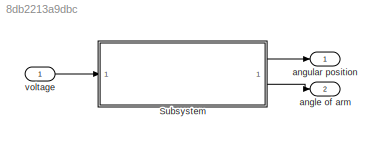
MODEL slx_8db2213a9dbc
KIND model
CONFIG AbsTol = auto
CONFIG EnableMultiTasking = off
CONFIG FixedStep = auto
CONFIG InitFcn = J_eq = 1.843e-6;\nm = 0.0270;\nr = 0.0826;\nK_g = 1;\nJ_m = 1.80e-4;\nn_g = 1;\nn_m = 0.69;\nL = 0.0955;\ng = 9.9;\nK_t = 0.0334;\nR = 8.7;\n\na = J_eq + m * r ^ 2 + n_g * K_g ^ 2 * J_m;\nb = m * L * r;\nc = (4/3) * m * L ^ 2;\nd = m * g * L;\ne = 2.718;\nf = (n_m * n_g * K_t * K_g) / R;
CONFIG MaxStep = auto
CONFIG MinStep = auto
CONFIG RelTol = 1e-3
CONFIG SampleTimeConstraint = Unconstrained
CONFIG SolverName = VariableStepAuto
CONFIG StartTime = 0.0
CONFIG StopTime = 10.0
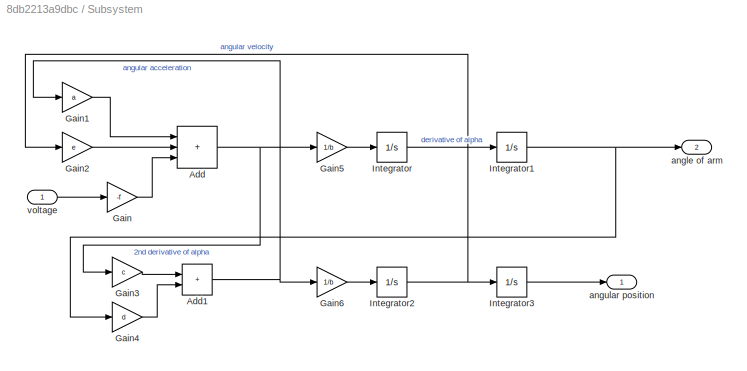
BLOCK [SubSystem] Subsystem
BLOCK [Sum] Subsystem/Add
  IconShape = rectangular
  Inputs = +++
BLOCK [Sum] Subsystem/Add1
  IconShape = rectangular
BLOCK [Gain] Subsystem/Gain
  Gain = -f
BLOCK [Gain] Subsystem/Gain1
  Gain = a
BLOCK [Gain] Subsystem/Gain2
  Gain = e
BLOCK [Gain] Subsystem/Gain3
  Gain = c
BLOCK [Gain] Subsystem/Gain4
  Gain = d
BLOCK [Gain] Subsystem/Gain5
  Gain = 1/b
BLOCK [Gain] Subsystem/Gain6
  Gain = 1/b
BLOCK [Integrator] Subsystem/Integrator
BLOCK [Integrator] Subsystem/Integrator1
BLOCK [Integrator] Subsystem/Integrator2
BLOCK [Integrator] Subsystem/Integrator3
BLOCK [Outport] Subsystem/angle of arm
  Port = 2
BLOCK [Outport] Subsystem/angular position
BLOCK [Inport] Subsystem/voltage
BLOCK [Outport] angle of arm
  Port = 2
BLOCK [Outport] angular position
  NameLocation = top
BLOCK [Inport] voltage
NET Subsystem/Add1:1 -> Subsystem/Gain1:1, Subsystem/Gain6:1
NET Subsystem/Add:1 -> Subsystem/Gain3:1, Subsystem/Gain5:1
LINE Subsystem/Gain1:1 -> Subsystem/Add:1
LINE Subsystem/Gain2:1 -> Subsystem/Add:2
LINE Subsystem/Gain3:1 -> Subsystem/Add1:1
LINE Subsystem/Gain4:1 -> Subsystem/Add1:2
LINE Subsystem/Gain5:1 -> Subsystem/Integrator:1
LINE Subsystem/Gain6:1 -> Subsystem/Integrator2:1
LINE Subsystem/Gain:1 -> Subsystem/Add:3
NET Subsystem/Integrator1:1 -> Subsystem/Gain4:1, Subsystem/angle of arm:1
NET Subsystem/Integrator2:1 -> Subsystem/Gain2:1, Subsystem/Integrator3:1
LINE Subsystem/Integrator3:1 -> Subsystem/angular position:1
LINE Subsystem/Integrator:1 -> Subsystem/Integrator1:1
LINE Subsystem/voltage:1 -> Subsystem/Gain:1
LINE Subsystem:1 -> angular position:1
LINE Subsystem:2 -> angle of arm:1
LINE voltage:1 -> Subsystem:1
note: NET lines group one-source signal fan-out (src -> all destinations, sorted); 1:1 wires keep LINE
